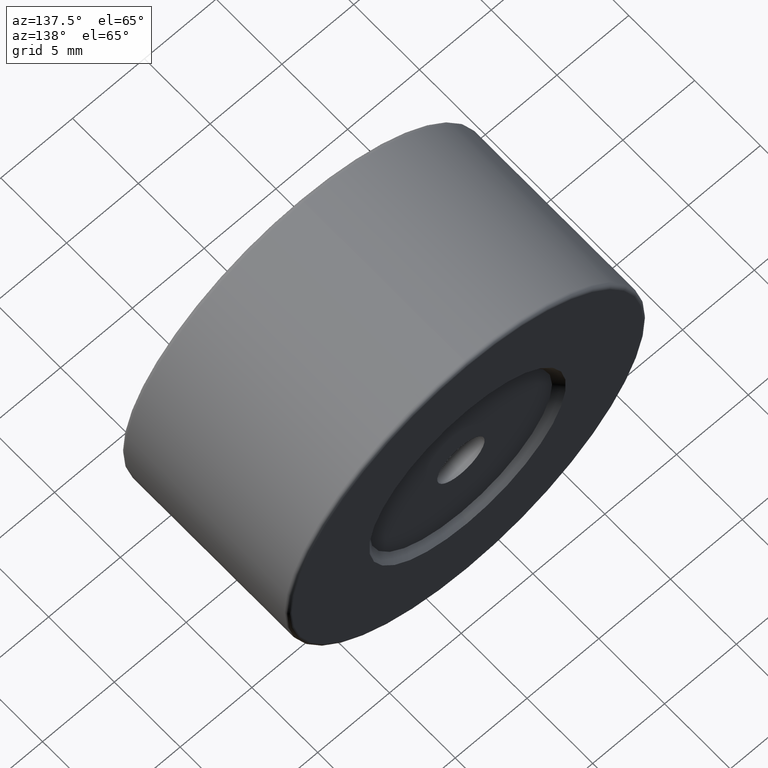
[diagram: clean part render]
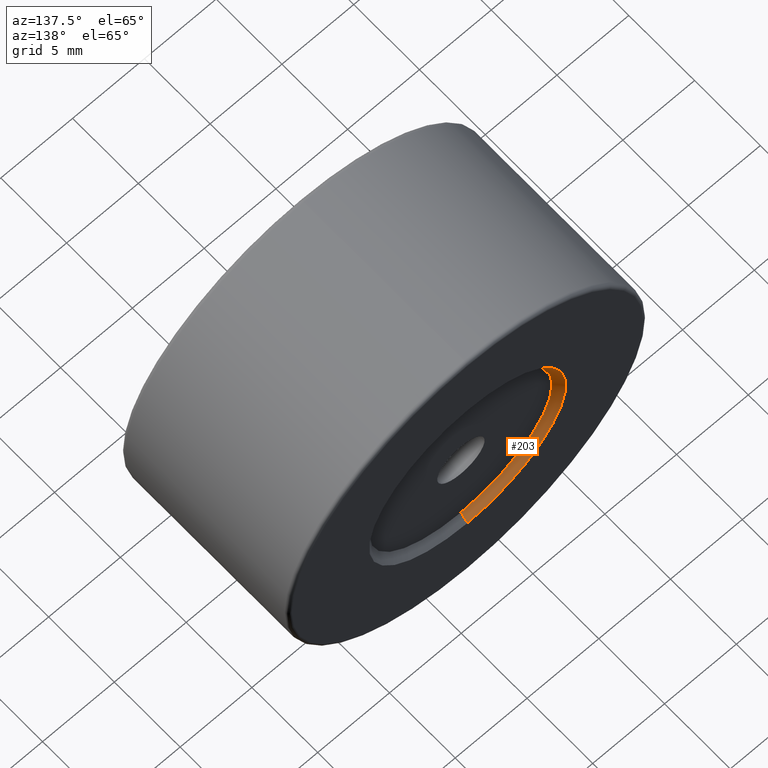
[diagram: same view with one face highlighted and labeled with its STEP entity id]
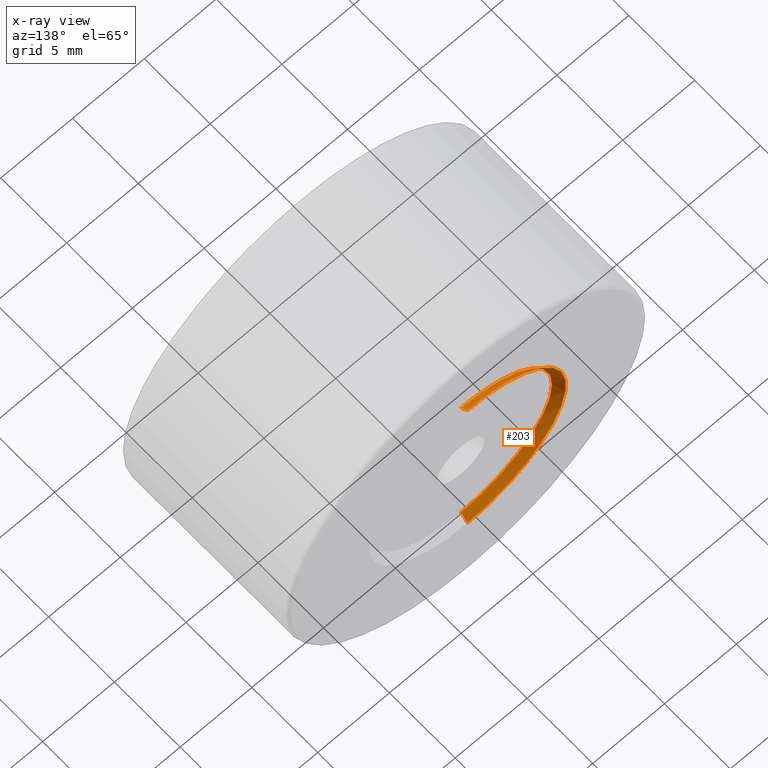
[diagram: x-ray of the same camera — body ghosted, the highlighted face saturated]
A machine part, auxiliary view. The second image highlights one B-rep face of the part: STEP entity #203.
The next image is the same camera in x-ray: the body ghosted, the highlighted face saturated — about 0% of this face is hidden behind the body in this view.
In plain terms, the highlighted conical surface has half-angle 45 deg.
Its self-contained STEP definition (entity closure, byte-faithful):
#9 = ORIENTED_EDGE ( 'NONE', *, *, #156, .F. ) ;
#11 = CARTESIAN_POINT ( 'NONE',  ( -22.50520183104453409, 7.748252184769388151, 56.85000000000000853 ) ) ;
#14 = DIRECTION ( 'NONE',  ( 0.0000000000000000000, 0.0000000000000000000, 1.000000000000000000 ) ) ;
#24 = CARTESIAN_POINT ( 'NONE',  ( -22.50520183104453409, 7.248252184769383710, 56.35000000000000142 ) ) ;
#33 = VERTEX_POINT ( 'NONE', #228 ) ;
#49 = CIRCLE ( 'NONE', #555, 6.850000000000008527 ) ;
#55 = VERTEX_POINT ( 'NONE', #77 ) ;
#63 = DIRECTION ( 'NONE',  ( 8.659560562354955045E-17, 0.7071067811865456854, -0.7071067811865493491 ) ) ;
#77 = CARTESIAN_POINT ( 'NONE',  ( -22.50520183104453409, 7.248252184769387263, 56.35000000000000142 ) ) ;
#97 = VECTOR ( 'NONE', #63, 1000.000000000000000 ) ;
#117 = ORIENTED_EDGE ( 'NONE', *, *, #340, .F. ) ;
#120 = DIRECTION ( 'NONE',  ( 0.0000000000000000000, 0.7071067811865456854, 0.7071067811865493491 ) ) ;
#127 = DIRECTION ( 'NONE',  ( 0.0000000000000000000, 0.0000000000000000000, 1.000000000000000000 ) ) ;
#147 = AXIS2_PLACEMENT_3D ( 'NONE', #170, #481, #127 ) ;
#156 = EDGE_CURVE ( 'NONE', #55, #357, #336, .T. ) ;
#157 = DIRECTION ( 'NONE',  ( -0.0000000000000000000, -1.000000000000000000, -0.0000000000000000000 ) ) ;
#164 = DIRECTION ( 'NONE',  ( 0.0000000000000000000, 1.000000000000000000, 0.0000000000000000000 ) ) ;
#170 = CARTESIAN_POINT ( 'NONE',  ( -22.50520183104453409, 7.248252184769387263, 50.00000000000000000 ) ) ;
#190 = VERTEX_POINT ( 'NONE', #480 ) ;
#203 = ADVANCED_FACE ( 'NONE', ( #385 ), #433, .F. ) ;
#228 = CARTESIAN_POINT ( 'NONE',  ( -22.50520183104453409, 7.248252184769387263, 43.64999999999999858 ) ) ;
#244 = CARTESIAN_POINT ( 'NONE',  ( -22.50520183104453409, 7.748252184769388151, 50.00000000000000000 ) ) ;
#282 = CARTESIAN_POINT ( 'NONE',  ( -22.50520183104453409, 7.248252184769383710, 43.64999999999999858 ) ) ;
#315 = EDGE_CURVE ( 'NONE', #33, #190, #333, .T. ) ;
#325 = EDGE_LOOP ( 'NONE', ( #412, #459, #117, #9 ) ) ;
#333 = LINE ( 'NONE', #282, #97 ) ;
#336 = LINE ( 'NONE', #24, #515 ) ;
#340 = EDGE_CURVE ( 'NONE', #357, #190, #49, .T. ) ;
#357 = VERTEX_POINT ( 'NONE', #11 ) ;
#385 = FACE_OUTER_BOUND ( 'NONE', #325, .T. ) ;
#412 = ORIENTED_EDGE ( 'NONE', *, *, #503, .F. ) ;
#433 = CONICAL_SURFACE ( 'NONE', #519, 6.350000000000001421, 0.7853981633974509435 ) ;
#459 = ORIENTED_EDGE ( 'NONE', *, *, #315, .T. ) ;
#480 = CARTESIAN_POINT ( 'NONE',  ( -22.50520183104453409, 7.748252184769388151, 43.14999999999999147 ) ) ;
#481 = DIRECTION ( 'NONE',  ( 0.0000000000000000000, 1.000000000000000000, 0.0000000000000000000 ) ) ;
#494 = CIRCLE ( 'NONE', #147, 6.350000000000001421 ) ;
#503 = EDGE_CURVE ( 'NONE', #33, #55, #494, .T. ) ;
#515 = VECTOR ( 'NONE', #120, 1000.000000000000000 ) ;
#519 = AXIS2_PLACEMENT_3D ( 'NONE', #561, #164, #564 ) ;
#555 = AXIS2_PLACEMENT_3D ( 'NONE', #244, #157, #14 ) ;
#561 = CARTESIAN_POINT ( 'NONE',  ( -22.50520183104453409, 7.248252184769383710, 50.00000000000000000 ) ) ;
#564 = DIRECTION ( 'NONE',  ( 0.0000000000000000000, 0.0000000000000000000, 1.000000000000000000 ) ) ;